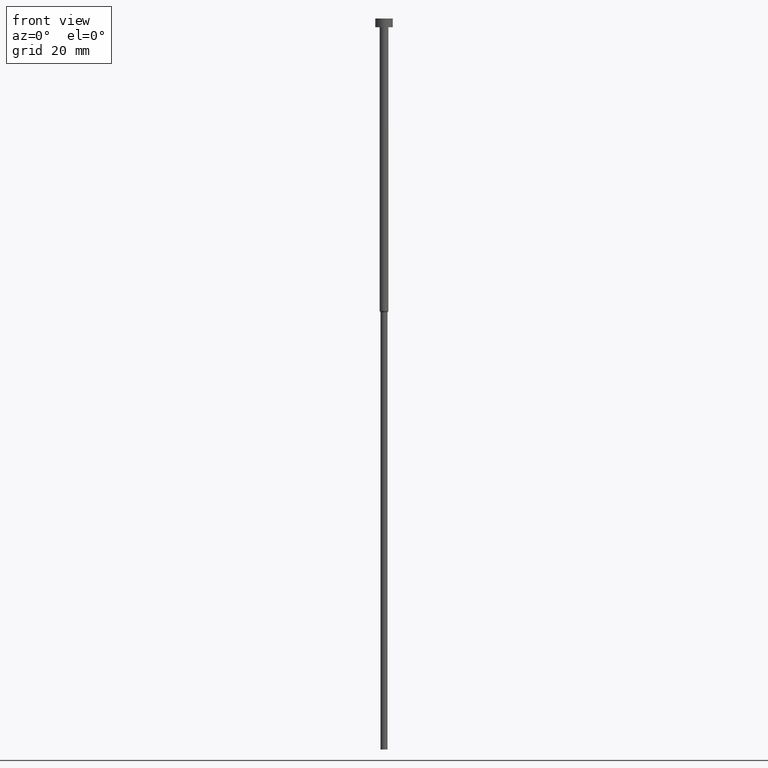
[diagram: clean part render]
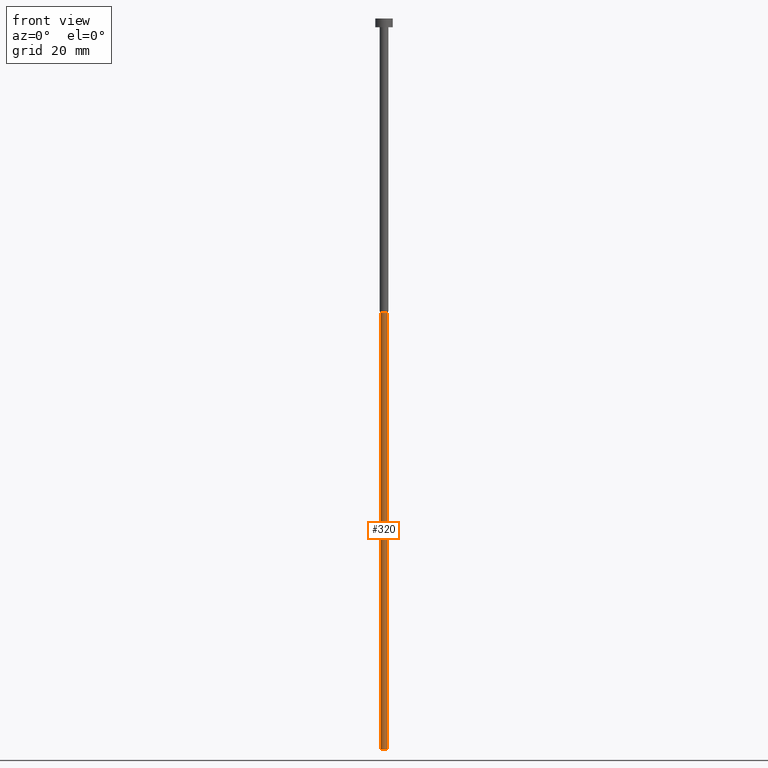
[diagram: same view with one face highlighted and labeled with its STEP entity id]
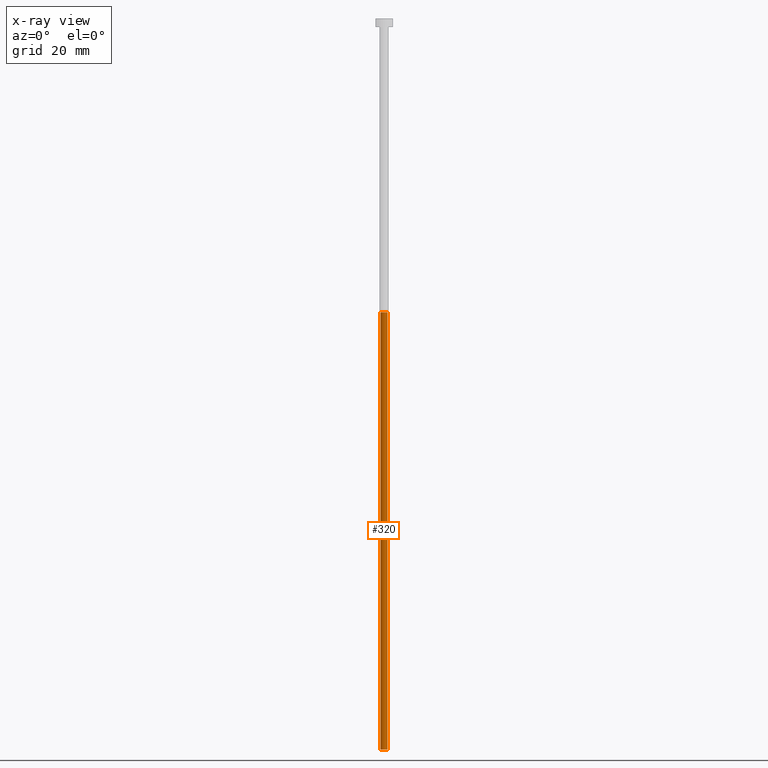
[diagram: x-ray of the same camera — body ghosted, the highlighted face saturated]
A machine part, front view. The second image highlights one B-rep face of the part: STEP entity #320.
The next image is the same camera in x-ray: the body ghosted, the highlighted face saturated — about 0% of this face is hidden behind the body in this view.
In plain terms, the highlighted cylindrical surface (edge-blend (fillet) strip) has radius 1.2 mm, axis along (-0, -0, 1).
Its self-contained STEP definition (entity closure, byte-faithful):
#28 = DIRECTION ( 'NONE',  ( 1.000000000000000000, 0.000000000000000000, 0.000000000000000000 ) ) ;
#34 = CIRCLE ( 'NONE', #224, 1.199999999999999956 ) ;
#36 = CARTESIAN_POINT ( 'NONE',  ( -1.199999999999999956, 1.469576158976823553E-16, -250.0000000000000000 ) ) ;
#41 = CARTESIAN_POINT ( 'NONE',  ( 0.000000000000000000, 0.000000000000000000, 0.000000000000000000 ) ) ;
#53 = ORIENTED_EDGE ( 'NONE', *, *, #124, .T. ) ;
#56 = CARTESIAN_POINT ( 'NONE',  ( 0.000000000000000000, 0.000000000000000000, -250.0000000000000000 ) ) ;
#62 = CARTESIAN_POINT ( 'NONE',  ( 1.199999999999999956, 0.000000000000000000, 0.000000000000000000 ) ) ;
#74 = EDGE_CURVE ( 'NONE', #101, #291, #245, .T. ) ;
#92 = CYLINDRICAL_SURFACE ( 'NONE', #269, 1.199999999999999956 ) ;
#97 = ORIENTED_EDGE ( 'NONE', *, *, #130, .F. ) ;
#99 = DIRECTION ( 'NONE',  ( -0.000000000000000000, -0.000000000000000000, 1.000000000000000000 ) ) ;
#101 = VERTEX_POINT ( 'NONE', #286 ) ;
#119 = DIRECTION ( 'NONE',  ( -0.000000000000000000, -0.000000000000000000, 1.000000000000000000 ) ) ;
#124 = EDGE_CURVE ( 'NONE', #255, #308, #34, .T. ) ;
#125 = ORIENTED_EDGE ( 'NONE', *, *, #150, .T. ) ;
#130 = EDGE_CURVE ( 'NONE', #255, #101, #137, .T. ) ;
#137 = LINE ( 'NONE', #330, #303 ) ;
#150 = EDGE_CURVE ( 'NONE', #308, #291, #300, .T. ) ;
#167 = DIRECTION ( 'NONE',  ( -0.000000000000000000, -0.000000000000000000, 1.000000000000000000 ) ) ;
#184 = DIRECTION ( 'NONE',  ( 1.000000000000000000, 0.000000000000000000, 0.000000000000000000 ) ) ;
#188 = CARTESIAN_POINT ( 'NONE',  ( 0.000000000000000000, 0.000000000000000000, -100.5196152422706604 ) ) ;
#199 = CARTESIAN_POINT ( 'NONE',  ( 1.199999999999999956, 0.000000000000000000, -250.0000000000000000 ) ) ;
#224 = AXIS2_PLACEMENT_3D ( 'NONE', #56, #167, #28 ) ;
#226 = ORIENTED_EDGE ( 'NONE', *, *, #74, .F. ) ;
#228 = VECTOR ( 'NONE', #119, 1000.000000000000000 ) ;
#240 = EDGE_LOOP ( 'NONE', ( #97, #53, #125, #226 ) ) ;
#245 = CIRCLE ( 'NONE', #250, 1.199999999999999956 ) ;
#246 = DIRECTION ( 'NONE',  ( -0.000000000000000000, -0.000000000000000000, 1.000000000000000000 ) ) ;
#250 = AXIS2_PLACEMENT_3D ( 'NONE', #188, #350, #184 ) ;
#255 = VERTEX_POINT ( 'NONE', #36 ) ;
#269 = AXIS2_PLACEMENT_3D ( 'NONE', #41, #99, #280 ) ;
#280 = DIRECTION ( 'NONE',  ( 1.000000000000000000, 0.000000000000000000, 0.000000000000000000 ) ) ;
#286 = CARTESIAN_POINT ( 'NONE',  ( -1.199999999999999956, 1.469576158976823553E-16, -100.5196152422706604 ) ) ;
#291 = VERTEX_POINT ( 'NONE', #304 ) ;
#300 = LINE ( 'NONE', #62, #228 ) ;
#303 = VECTOR ( 'NONE', #246, 1000.000000000000000 ) ;
#304 = CARTESIAN_POINT ( 'NONE',  ( 1.199999999999999956, 0.000000000000000000, -100.5196152422706604 ) ) ;
#308 = VERTEX_POINT ( 'NONE', #199 ) ;
#313 = FACE_OUTER_BOUND ( 'NONE', #240, .T. ) ;
#320 = ADVANCED_FACE ( 'NONE', ( #313 ), #92, .T. ) ;
#330 = CARTESIAN_POINT ( 'NONE',  ( -1.199999999999999956, 1.469576158976823553E-16, 0.000000000000000000 ) ) ;
#350 = DIRECTION ( 'NONE',  ( -0.000000000000000000, -0.000000000000000000, 1.000000000000000000 ) ) ;